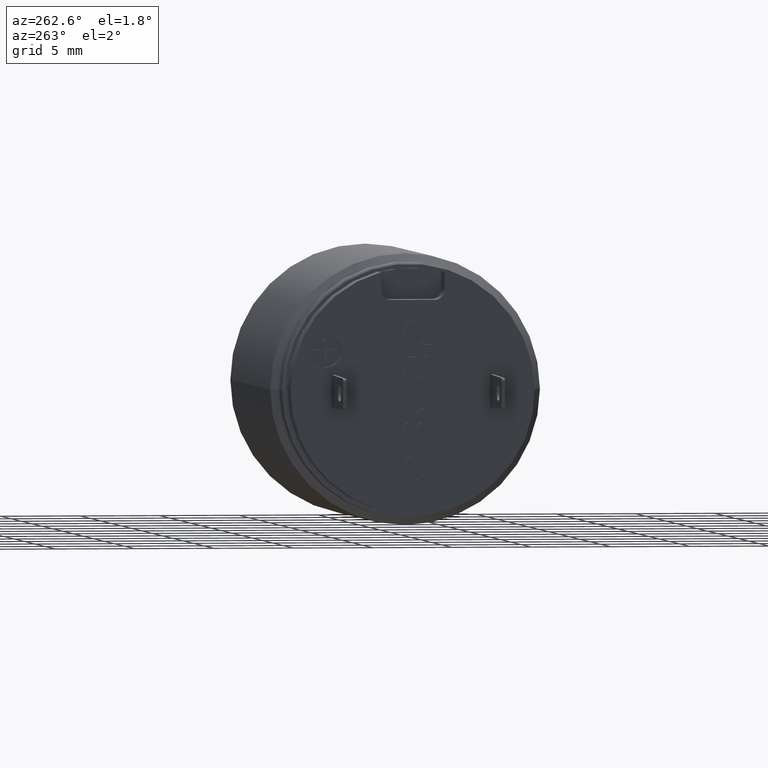
[diagram: clean part render]
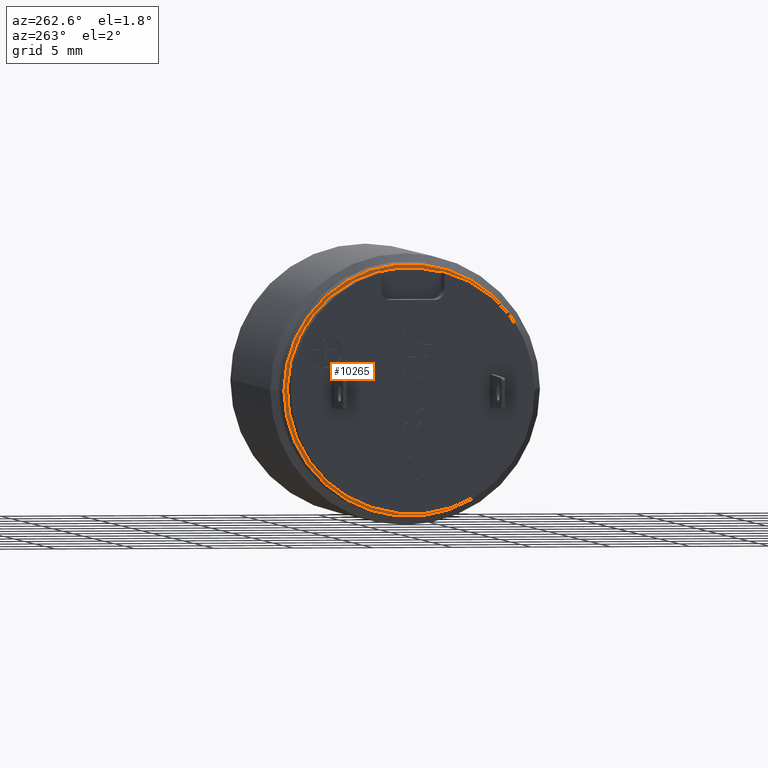
[diagram: same view with one face highlighted and labeled with its STEP entity id]
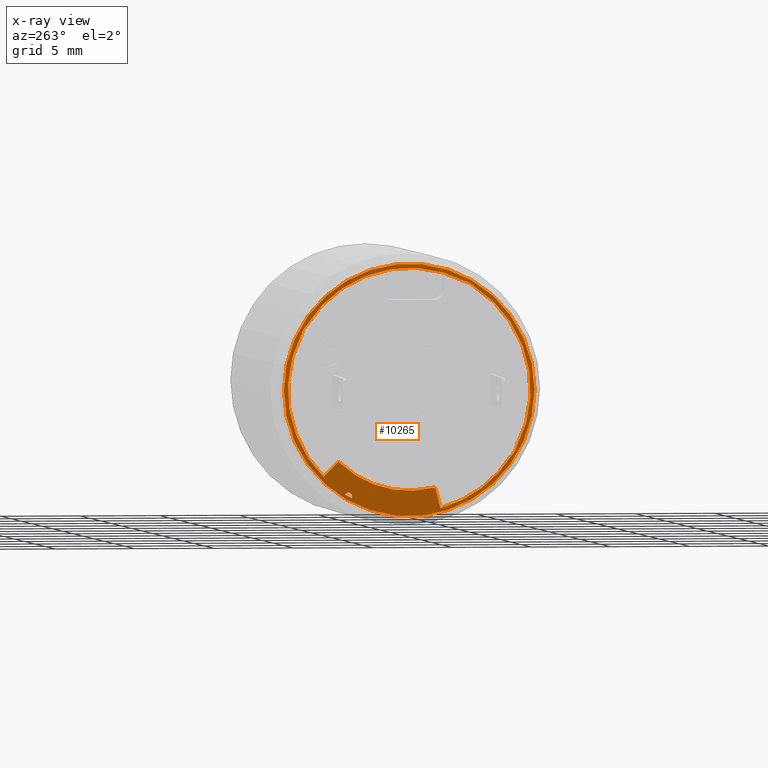
[diagram: x-ray of the same camera — body ghosted, the highlighted face saturated]
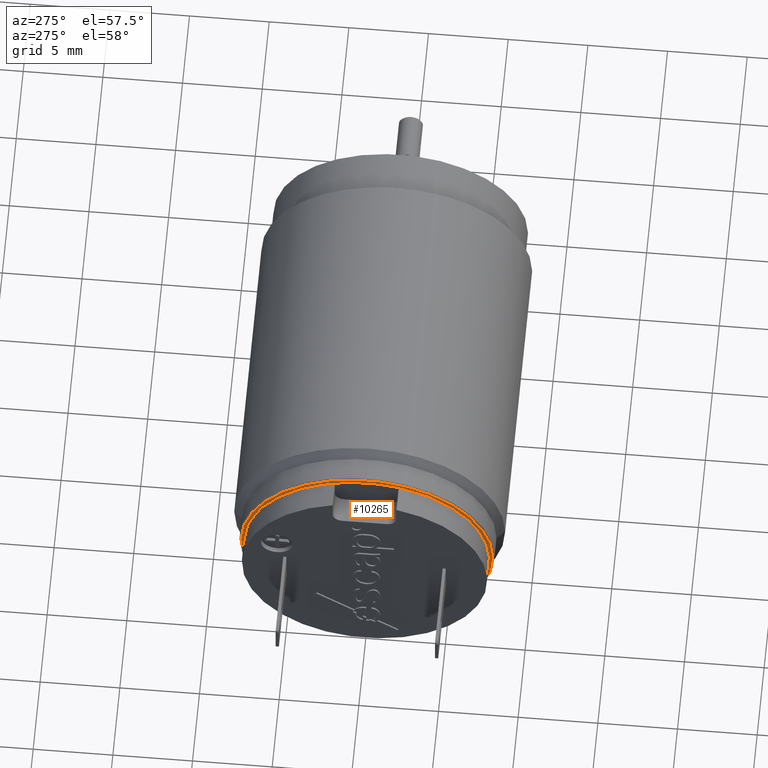
[diagram: same view with one face highlighted and labeled with its STEP entity id]
A machine part, auxiliary view. The second image highlights one B-rep face of the part: STEP entity #10265.
The next image is the same camera in x-ray: the body ghosted, the highlighted face saturated — about 0% of this face is hidden behind the body in this view.
A second angle (auxiliary view) of the same face is appended — the face is thin or edge-on in the first view.
In plain terms, the highlighted planar face has unit normal (-1, 0, 0).
Its self-contained STEP definition (entity closure, byte-faithful):
#3247=CARTESIAN_POINT('',(-2.42E1,0.E0,0.E0));
#3248=DIRECTION('',(1.E0,0.E0,0.E0));
#3249=DIRECTION('',(0.E0,7.071067811865E-1,-7.071067811865E-1));
#3250=AXIS2_PLACEMENT_3D('',#3247,#3248,#3249);
#3259=CARTESIAN_POINT('',(-2.42E1,0.E0,0.E0));
#3260=DIRECTION('',(1.E0,0.E0,0.E0));
#3261=DIRECTION('',(0.E0,-8.498749960527E-1,-5.269843366595E-1));
#3262=AXIS2_PLACEMENT_3D('',#3259,#3260,#3261);
#3280=CARTESIAN_POINT('',(-2.42E1,0.E0,0.E0));
#3281=DIRECTION('',(1.E0,0.E0,0.E0));
#3282=DIRECTION('',(0.E0,-5.269843366595E-1,8.498749960527E-1));
#3283=AXIS2_PLACEMENT_3D('',#3280,#3281,#3282);
#3309=CARTESIAN_POINT('',(-2.42E1,0.E0,0.E0));
#3310=DIRECTION('',(1.E0,0.E0,0.E0));
#3311=DIRECTION('',(0.E0,8.498749960527E-1,5.269843366595E-1));
#3312=AXIS2_PLACEMENT_3D('',#3309,#3310,#3311);
#3336=DIRECTION('',(0.E0,-8.660254037844E-1,-5.E-1));
#3337=VECTOR('',#3336,4.845299461621E-1);
#3338=CARTESIAN_POINT('',(-2.42E1,4.047307621135E0,-6.525612487505E0));
#3339=LINE('',#3338,#3337);
#3340=CARTESIAN_POINT('',(-2.42E1,3.8375E0,-6.646744974046E0));
#3341=DIRECTION('',(1.E0,0.E0,0.E0));
#3342=DIRECTION('',(0.E0,8.660254037844E-1,5.E-1));
#3343=AXIS2_PLACEMENT_3D('',#3340,#3341,#3342);
#3345=DIRECTION('',(0.E0,8.660254037844E-1,5.E-1));
#3346=VECTOR('',#3345,4.845299461621E-1);
#3347=CARTESIAN_POINT('',(-2.42E1,-4.047307621135E0,6.525612487505E0));
#3348=LINE('',#3347,#3346);
#3349=CARTESIAN_POINT('',(-2.42E1,-3.8375E0,6.646744974046E0));
#3350=DIRECTION('',(1.E0,0.E0,0.E0));
#3351=DIRECTION('',(0.E0,9.192953472633E-1,3.935683733483E-1));
#3352=AXIS2_PLACEMENT_3D('',#3349,#3350,#3351);
#3354=CARTESIAN_POINT('',(-2.42E1,6.646744974046E0,3.8375E0));
#3355=DIRECTION('',(1.E0,0.E0,0.E0));
#3356=DIRECTION('',(0.E0,-5.E-1,8.660254037844E-1));
#3357=AXIS2_PLACEMENT_3D('',#3354,#3355,#3356);
#3359=DIRECTION('',(0.E0,5.E-1,-8.660254037844E-1));
#3360=VECTOR('',#3359,4.845299461621E-1);
#3361=CARTESIAN_POINT('',(-2.42E1,6.525612487505E0,4.047307621135E0));
#3362=LINE('',#3361,#3360);
#3363=CARTESIAN_POINT('',(-2.42E1,6.646744974046E0,3.8375E0));
#3364=DIRECTION('',(1.E0,0.E0,0.E0));
#3365=DIRECTION('',(0.E0,3.935683733483E-1,-9.192953472633E-1));
#3366=AXIS2_PLACEMENT_3D('',#3363,#3364,#3365);
#3368=DIRECTION('',(0.E0,7.071067811865E-1,-7.071067811865E-1));
#3369=VECTOR('',#3368,1.250781297690E0);
#3370=CARTESIAN_POINT('',(-2.42E1,4.524930938700E0,-4.524930938700E0));
#3371=LINE('',#3370,#3369);
#3372=CARTESIAN_POINT('',(-2.42E1,4.454220260581E0,-4.595641616818E0));
#3373=DIRECTION('',(-1.E0,0.E0,0.E0));
#3374=DIRECTION('',(0.E0,-6.959719157157E-1,7.180690026279E-1));
#3375=AXIS2_PLACEMENT_3D('',#3372,#3373,#3374);
#3377=CARTESIAN_POINT('',(-2.42E1,0.E0,0.E0));
#3378=DIRECTION('',(1.E0,0.E0,0.E0));
#3379=DIRECTION('',(0.E0,-2.436948580164E-1,-9.698519558037E-1));
#3380=AXIS2_PLACEMENT_3D('',#3377,#3378,#3379);
#3382=CARTESIAN_POINT('',(-2.42E1,-1.559647091305E0,-6.207052517144E0));
#3383=DIRECTION('',(-1.E0,0.E0,0.E0));
#3384=DIRECTION('',(0.E0,-9.659258262891E-1,2.588190451025E-1));
#3385=AXIS2_PLACEMENT_3D('',#3382,#3383,#3384);
#3387=DIRECTION('',(0.E0,2.588190451025E-1,9.659258262891E-1));
#3388=VECTOR('',#3387,1.250781297690E0);
#3389=CARTESIAN_POINT('',(-2.42E1,-1.979965695034E0,-7.389332571111E0));
#3390=LINE('',#3389,#3388);
#3391=CARTESIAN_POINT('',(-2.42E1,-6.646744974046E0,-3.8375E0));
#3392=DIRECTION('',(1.E0,0.E0,0.E0));
#3393=DIRECTION('',(0.E0,5.E-1,-8.660254037844E-1));
#3394=AXIS2_PLACEMENT_3D('',#3391,#3392,#3393);
#3396=DIRECTION('',(0.E0,-5.E-1,8.660254037844E-1));
#3397=VECTOR('',#3396,4.845299461621E-1);
#3398=CARTESIAN_POINT('',(-2.42E1,-6.525612487505E0,-4.047307621135E0));
#3399=LINE('',#3398,#3397);
#3400=CARTESIAN_POINT('',(-2.42E1,-6.646744974046E0,-3.8375E0));
#3401=DIRECTION('',(1.E0,0.E0,0.E0));
#3402=DIRECTION('',(0.E0,-3.935683733483E-1,9.192953472633E-1));
#3403=AXIS2_PLACEMENT_3D('',#3400,#3401,#3402);
#3405=CARTESIAN_POINT('',(-2.42E1,-3.8375E0,6.646744974046E0));
#3406=DIRECTION('',(1.E0,0.E0,0.E0));
#3407=DIRECTION('',(0.E0,-8.660254037844E-1,-5.E-1));
#3408=AXIS2_PLACEMENT_3D('',#3405,#3406,#3407);
#3410=CARTESIAN_POINT('',(-2.420000309499E1,1.679609780170E-14,
4.329869796038E-14));
#3411=DIRECTION('',(-1.E0,0.E0,0.E0));
#3412=DIRECTION('',(0.E0,1.E0,0.E0));
#3413=AXIS2_PLACEMENT_3D('',#3410,#3411,#3412);
#3415=CARTESIAN_POINT('',(-2.420000309499E1,-1.784286056660E-14,
-4.218847493576E-14));
#3416=DIRECTION('',(-1.E0,0.E0,0.E0));
#3417=DIRECTION('',(0.E0,-1.E0,0.E0));
#3418=AXIS2_PLACEMENT_3D('',#3415,#3416,#3417);
#4150=CARTESIAN_POINT('',(-2.42E1,-1.979965695034E0,-7.389332571111E0));
#4152=VERTEX_POINT('',#4150);
#4154=CARTESIAN_POINT('',(-2.42E1,5.409366876077E0,-5.409366876077E0));
#4156=VERTEX_POINT('',#4154);
#4162=CARTESIAN_POINT('',(-2.42E1,-1.656239673934E0,-6.181170612634E0));
#4163=VERTEX_POINT('',#4162);
#4164=CARTESIAN_POINT('',(-2.42E1,4.524930938700E0,-4.524930938700E0));
#4165=VERTEX_POINT('',#4164);
#4166=CARTESIAN_POINT('',(-2.42E1,6.525612487505E0,4.047307621135E0));
#4167=CARTESIAN_POINT('',(-2.42E1,6.501543719803E0,4.031430175445E0));
#4168=VERTEX_POINT('',#4166);
#4169=VERTEX_POINT('',#4167);
#4171=CARTESIAN_POINT('',(-2.42E1,6.767877460586E0,3.627692378865E0));
#4173=VERTEX_POINT('',#4171);
#4175=CARTESIAN_POINT('',(-2.42E1,6.742092805420E0,3.614786937442E0));
#4176=VERTEX_POINT('',#4175);
#4178=CARTESIAN_POINT('',(-2.42E1,4.047307621135E0,-6.525612487505E0));
#4179=CARTESIAN_POINT('',(-2.42E1,3.627692378865E0,-6.767877460586E0));
#4180=VERTEX_POINT('',#4178);
#4181=VERTEX_POINT('',#4179);
#4184=CARTESIAN_POINT('',(-2.42E1,-6.525612487505E0,-4.047307621135E0));
#4185=CARTESIAN_POINT('',(-2.42E1,-6.767877460586E0,-3.627692378865E0));
#4186=VERTEX_POINT('',#4184);
#4187=VERTEX_POINT('',#4185);
#4188=CARTESIAN_POINT('',(-2.42E1,-6.501543719803E0,-4.031430175445E0));
#4189=VERTEX_POINT('',#4188);
#4190=CARTESIAN_POINT('',(-2.42E1,-6.742092805420E0,-3.614786937442E0));
#4191=VERTEX_POINT('',#4190);
#4196=CARTESIAN_POINT('',(-2.42E1,-4.047307621135E0,6.525612487505E0));
#4197=CARTESIAN_POINT('',(-2.42E1,-3.627692378865E0,6.767877460586E0));
#4198=VERTEX_POINT('',#4196);
#4199=VERTEX_POINT('',#4197);
#4200=CARTESIAN_POINT('',(-2.42E1,-4.031430175445E0,6.501543719803E0));
#4201=VERTEX_POINT('',#4200);
#4202=CARTESIAN_POINT('',(-2.42E1,-3.614786937442E0,6.742092805420E0));
#4203=VERTEX_POINT('',#4202);
#4404=CARTESIAN_POINT('',(-2.42E1,-1.535277605504E0,-6.110067321564E0));
#4405=CARTESIAN_POINT('',(-2.42E1,4.384623069009E0,-4.523834716555E0));
#4406=VERTEX_POINT('',#4404);
#4407=VERTEX_POINT('',#4405);
#4412=CARTESIAN_POINT('',(-2.420000309499E1,7.900000638813E0,0.E0));
#4413=CARTESIAN_POINT('',(-2.420000309499E1,-7.900000638813E0,0.E0));
#4414=VERTEX_POINT('',#4412);
#4415=VERTEX_POINT('',#4413);
#10216=CARTESIAN_POINT('',(-2.42E1,0.E0,0.E0));
#10217=DIRECTION('',(-1.E0,0.E0,0.E0));
#10218=DIRECTION('',(0.E0,1.E0,0.E0));
#10219=AXIS2_PLACEMENT_3D('',#10216,#10217,#10218);
#10220=PLANE('',#10219);
#10222=ORIENTED_EDGE('',*,*,#10221,.F.);
#10224=ORIENTED_EDGE('',*,*,#10223,.F.);
#10225=EDGE_LOOP('',(#10222,#10224));
#10226=FACE_OUTER_BOUND('',#10225,.F.);
#10228=ORIENTED_EDGE('',*,*,#10227,.T.);
#10230=ORIENTED_EDGE('',*,*,#10229,.F.);
#10231=ORIENTED_EDGE('',*,*,#10188,.F.);
#10232=ORIENTED_EDGE('',*,*,#10202,.F.);
#10234=ORIENTED_EDGE('',*,*,#10233,.T.);
#10235=ORIENTED_EDGE('',*,*,#10207,.F.);
#10236=ORIENTED_EDGE('',*,*,#10145,.F.);
#10238=ORIENTED_EDGE('',*,*,#10237,.F.);
#10240=ORIENTED_EDGE('',*,*,#10239,.F.);
#10242=ORIENTED_EDGE('',*,*,#10241,.F.);
#10244=ORIENTED_EDGE('',*,*,#10243,.F.);
#10246=ORIENTED_EDGE('',*,*,#10245,.F.);
#10247=ORIENTED_EDGE('',*,*,#10157,.F.);
#10249=ORIENTED_EDGE('',*,*,#10248,.F.);
#10251=ORIENTED_EDGE('',*,*,#10250,.T.);
#10253=ORIENTED_EDGE('',*,*,#10252,.F.);
#10254=ORIENTED_EDGE('',*,*,#10172,.F.);
#10256=ORIENTED_EDGE('',*,*,#10255,.F.);
#10257=EDGE_LOOP('',(#10228,#10230,#10231,#10232,#10234,#10235,#10236,#10238,
#10240,#10242,#10244,#10246,#10247,#10249,#10251,#10253,#10254,#10256));
#10258=FACE_BOUND('',#10257,.F.);
#10260=ORIENTED_EDGE('',*,*,#10259,.T.);
#10262=ORIENTED_EDGE('',*,*,#10261,.F.);
#10263=EDGE_LOOP('',(#10260,#10262));
#10264=FACE_BOUND('',#10263,.F.);
#10265=ADVANCED_FACE('',(#10226,#10258,#10264),#10220,.T.);
#3251=CIRCLE('',#3250,7.65E0);
#3263=CIRCLE('',#3262,7.65E0);
#3284=CIRCLE('',#3283,7.65E0);
#3313=CIRCLE('',#3312,7.65E0);
#3344=CIRCLE('',#3343,2.422649730810E-1);
#3353=CIRCLE('',#3352,2.422649730810E-1);
#3358=CIRCLE('',#3357,2.422649730810E-1);
#3367=CIRCLE('',#3366,2.422649730810E-1);
#3376=CIRCLE('',#3375,1.E-1);
#3381=CIRCLE('',#3380,6.3E0);
#3386=CIRCLE('',#3385,1.E-1);
#3395=CIRCLE('',#3394,2.422649730810E-1);
#3404=CIRCLE('',#3403,2.422649730810E-1);
#3409=CIRCLE('',#3408,2.422649730810E-1);
#3414=CIRCLE('',#3413,7.900000638813E0);
#3419=CIRCLE('',#3418,7.900000638813E0);
#10145=EDGE_CURVE('',#4156,#4176,#3251,.T.);
#10157=EDGE_CURVE('',#4189,#4152,#3263,.T.);
#10172=EDGE_CURVE('',#4201,#4191,#3284,.T.);
#10188=EDGE_CURVE('',#4169,#4203,#3313,.T.);
#10202=EDGE_CURVE('',#4168,#4169,#3358,.T.);
#10207=EDGE_CURVE('',#4176,#4173,#3367,.T.);
#10221=EDGE_CURVE('',#4414,#4415,#3414,.T.);
#10223=EDGE_CURVE('',#4415,#4414,#3419,.T.);
#10227=EDGE_CURVE('',#4198,#4199,#3348,.T.);
#10229=EDGE_CURVE('',#4203,#4199,#3353,.T.);
#10233=EDGE_CURVE('',#4168,#4173,#3362,.T.);
#10237=EDGE_CURVE('',#4165,#4156,#3371,.T.);
#10239=EDGE_CURVE('',#4407,#4165,#3376,.T.);
#10241=EDGE_CURVE('',#4406,#4407,#3381,.T.);
#10243=EDGE_CURVE('',#4163,#4406,#3386,.T.);
#10245=EDGE_CURVE('',#4152,#4163,#3390,.T.);
#10248=EDGE_CURVE('',#4186,#4189,#3395,.T.);
#10250=EDGE_CURVE('',#4186,#4187,#3399,.T.);
#10252=EDGE_CURVE('',#4191,#4187,#3404,.T.);
#10255=EDGE_CURVE('',#4198,#4201,#3409,.T.);
#10259=EDGE_CURVE('',#4180,#4181,#3339,.T.);
#10261=EDGE_CURVE('',#4180,#4181,#3344,.T.);